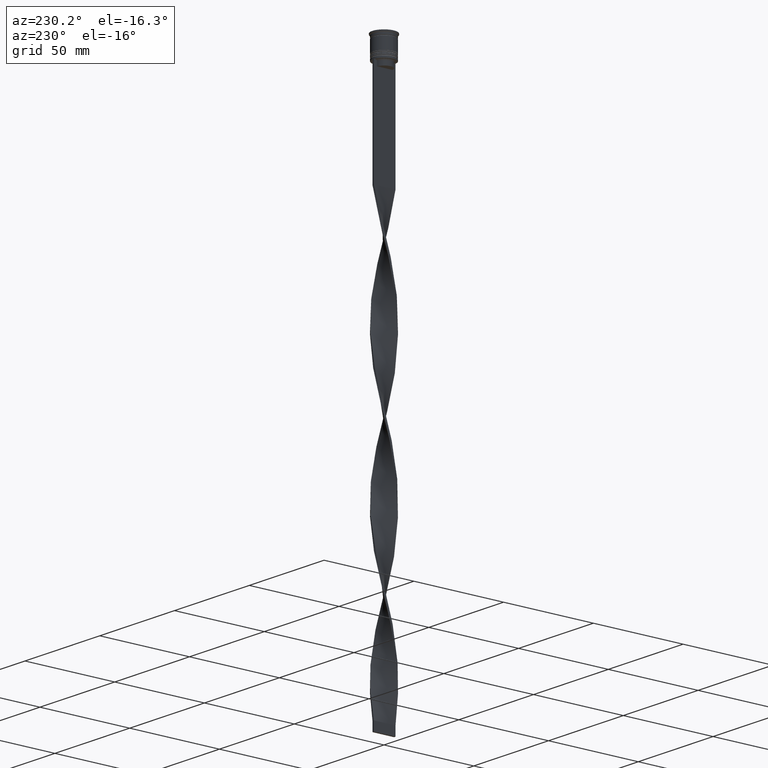
[diagram: clean part render]
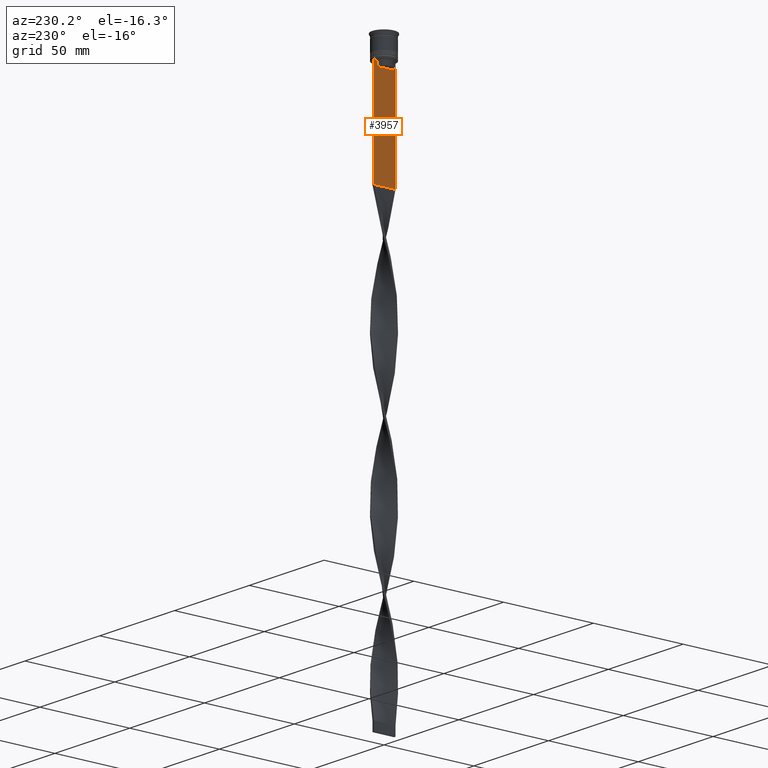
[diagram: same view with one face highlighted and labeled with its STEP entity id]
A machine part, auxiliary view. The second image highlights one B-rep face of the part: STEP entity #3957.
In plain terms, the highlighted planar face has unit normal (-1, 0, 0).
Its self-contained STEP definition (entity closure, byte-faithful):
#63 = DIRECTION ( 'NONE',  ( 0.000000000000000000, 0.000000000000000000, 1.000000000000000000 ) ) ;
#84 = VECTOR ( 'NONE', #731, 1000.000000000000000 ) ;
#140 = CARTESIAN_POINT ( 'NONE',  ( -0.4999999999999997780, -4.371498598878878816, -13.00000000000000178 ) ) ;
#207 = ORIENTED_EDGE ( 'NONE', *, *, #943, .F. ) ;
#350 = FACE_OUTER_BOUND ( 'NONE', #2481, .T. ) ;
#351 = VECTOR ( 'NONE', #3529, 1000.000000000000000 ) ;
#413 = LINE ( 'NONE', #2294, #2564 ) ;
#415 = DIRECTION ( 'NONE',  ( 0.000000000000000000, 0.000000000000000000, -1.000000000000000000 ) ) ;
#437 = CARTESIAN_POINT ( 'NONE',  ( -0.4999999999999997780, -6.000000000000000000, -12.50000000000000000 ) ) ;
#490 = VERTEX_POINT ( 'NONE', #3238 ) ;
#536 = VERTEX_POINT ( 'NONE', #969 ) ;
#554 = VECTOR ( 'NONE', #2550, 1000.000000000000000 ) ;
#613 = ORIENTED_EDGE ( 'NONE', *, *, #948, .F. ) ;
#731 = DIRECTION ( 'NONE',  ( 0.000000000000000000, 1.000000000000000000, 0.000000000000000000 ) ) ;
#733 = VERTEX_POINT ( 'NONE', #1876 ) ;
#751 = LINE ( 'NONE', #2651, #3662 ) ;
#763 = EDGE_CURVE ( 'NONE', #3014, #1298, #751, .T. ) ;
#776 = ORIENTED_EDGE ( 'NONE', *, *, #3330, .F. ) ;
#812 = CARTESIAN_POINT ( 'NONE',  ( -0.4999999999999997780, 4.371498598878878816, -13.00000000000000178 ) ) ;
#848 = LINE ( 'NONE', #2523, #1746 ) ;
#851 = ORIENTED_EDGE ( 'NONE', *, *, #1223, .F. ) ;
#861 = EDGE_CURVE ( 'NONE', #1298, #3415, #3293, .T. ) ;
#900 = B_SPLINE_CURVE_WITH_KNOTS ( 'NONE', 3,
 ( #1910, #3512, #2249, #1014 ),
 .UNSPECIFIED., .F., .F.,
 ( 4, 4 ),
 ( 0.008336552452178418518, 0.009045730124312837891 ),
 .UNSPECIFIED. ) ;
#935 = CARTESIAN_POINT ( 'NONE',  ( -0.4999999999999997780, -4.706831372970964544, -12.66671687695981596 ) ) ;
#943 = EDGE_CURVE ( 'NONE', #1533, #733, #1243, .T. ) ;
#948 = EDGE_CURVE ( 'NONE', #3994, #2982, #848, .T. ) ;
#969 = CARTESIAN_POINT ( 'NONE',  ( -0.4999999999999997780, 5.878775382679627626, -12.50000000000000000 ) ) ;
#1002 = LINE ( 'NONE', #1020, #3611 ) ;
#1014 = CARTESIAN_POINT ( 'NONE',  ( -0.4999999999999997780, 4.371498598878878816, -13.00000000000000178 ) ) ;
#1020 = CARTESIAN_POINT ( 'NONE',  ( -0.4999999999999997780, 4.371498598878878816, 0.000000000000000000 ) ) ;
#1072 = EDGE_CURVE ( 'NONE', #2747, #1533, #4065, .T. ) ;
#1091 = LINE ( 'NONE', #2326, #2684 ) ;
#1198 = EDGE_CURVE ( 'NONE', #733, #3014, #3820, .T. ) ;
#1223 = EDGE_CURVE ( 'NONE', #490, #2433, #900, .T. ) ;
#1227 = CARTESIAN_POINT ( 'NONE',  ( -0.4999999999999997780, -4.371498598878878816, -15.50000000000000000 ) ) ;
#1243 = LINE ( 'NONE', #2742, #2413 ) ;
#1298 = VERTEX_POINT ( 'NONE', #3240 ) ;
#1300 = ORIENTED_EDGE ( 'NONE', *, *, #1072, .F. ) ;
#1533 = VERTEX_POINT ( 'NONE', #2218 ) ;
#1665 = PLANE ( 'NONE',  #2219 ) ;
#1746 = VECTOR ( 'NONE', #3051, 1000.000000000000000 ) ;
#1754 = CARTESIAN_POINT ( 'NONE',  ( -0.4999999999999997780, -6.000000000000000000, -12.50000000000000000 ) ) ;
#1830 = ORIENTED_EDGE ( 'NONE', *, *, #763, .F. ) ;
#1876 = CARTESIAN_POINT ( 'NONE',  ( -0.4999999999999997780, -5.878775382679627626, -12.50000000000000000 ) ) ;
#1910 = CARTESIAN_POINT ( 'NONE',  ( -0.4999999999999997780, 4.874423042781576676, -12.50000000000000000 ) ) ;
#2034 = ORIENTED_EDGE ( 'NONE', *, *, #3839, .T. ) ;
#2110 = LINE ( 'NONE', #1754, #2228 ) ;
#2218 = CARTESIAN_POINT ( 'NONE',  ( -0.4999999999999997780, -4.874423042781576676, -12.50000000000000000 ) ) ;
#2219 = AXIS2_PLACEMENT_3D ( 'NONE', #3595, #2931, #63 ) ;
#2228 = VECTOR ( 'NONE', #3658, 1000.000000000000000 ) ;
#2249 = CARTESIAN_POINT ( 'NONE',  ( -0.4999999999999997780, 4.539195634199897356, -12.83338923751318816 ) ) ;
#2294 = CARTESIAN_POINT ( 'NONE',  ( -0.4999999999999997780, -6.000000000000000000, -12.50000000000000000 ) ) ;
#2326 = CARTESIAN_POINT ( 'NONE',  ( -0.4999999999999997780, -4.371498598878878816, 0.000000000000000000 ) ) ;
#2384 = CARTESIAN_POINT ( 'NONE',  ( -0.4999999999999997780, 6.000000000000000888, -68.50000000000000000 ) ) ;
#2413 = VECTOR ( 'NONE', #3758, 1000.000000000000000 ) ;
#2433 = VERTEX_POINT ( 'NONE', #812 ) ;
#2481 = EDGE_LOOP ( 'NONE', ( #851, #3253, #2666, #2034, #3744, #1830, #3947, #207, #1300, #776, #613, #4047 ) ) ;
#2523 = CARTESIAN_POINT ( 'NONE',  ( -0.4999999999999997780, 4.399999999999999467, -15.50000000000000000 ) ) ;
#2540 = CARTESIAN_POINT ( 'NONE',  ( -0.4999999999999997780, -6.000000000000000000, -12.50000000000000000 ) ) ;
#2550 = DIRECTION ( 'NONE',  ( 0.000000000000000000, 0.000000000000000000, -1.000000000000000000 ) ) ;
#2564 = VECTOR ( 'NONE', #2929, 1000.000000000000000 ) ;
#2651 = CARTESIAN_POINT ( 'NONE',  ( -0.4999999999999997780, -6.000000000000000000, -0.4584054212077061097 ) ) ;
#2666 = ORIENTED_EDGE ( 'NONE', *, *, #3685, .F. ) ;
#2684 = VECTOR ( 'NONE', #3585, 1000.000000000000000 ) ;
#2731 = CARTESIAN_POINT ( 'NONE',  ( -0.4999999999999997780, 6.000000000000001776, -12.50000000000000000 ) ) ;
#2742 = CARTESIAN_POINT ( 'NONE',  ( -0.4999999999999997780, -6.000000000000000000, -12.50000000000000000 ) ) ;
#2747 = VERTEX_POINT ( 'NONE', #140 ) ;
#2767 = CARTESIAN_POINT ( 'NONE',  ( -0.4999999999999997780, -4.874423042781576676, -12.50000000000000000 ) ) ;
#2913 = CARTESIAN_POINT ( 'NONE',  ( -0.4999999999999997780, 4.371498598878878816, -15.50000000000000000 ) ) ;
#2929 = DIRECTION ( 'NONE',  ( 0.000000000000000000, -1.000000000000000000, 0.000000000000000000 ) ) ;
#2931 = DIRECTION ( 'NONE',  ( -1.000000000000000000, 0.000000000000000000, 0.000000000000000000 ) ) ;
#2982 = VERTEX_POINT ( 'NONE', #1227 ) ;
#3014 = VERTEX_POINT ( 'NONE', #437 ) ;
#3025 = EDGE_CURVE ( 'NONE', #536, #490, #413, .T. ) ;
#3051 = DIRECTION ( 'NONE',  ( 0.000000000000000000, -1.000000000000000000, 0.000000000000000000 ) ) ;
#3204 = CARTESIAN_POINT ( 'NONE',  ( -0.4999999999999997780, 6.000000000000000888, -0.4584054212077061097 ) ) ;
#3238 = CARTESIAN_POINT ( 'NONE',  ( -0.4999999999999997780, 4.874423042781576676, -12.50000000000000000 ) ) ;
#3240 = CARTESIAN_POINT ( 'NONE',  ( -0.4999999999999997780, -6.000000000000000000, -68.50000000000000000 ) ) ;
#3253 = ORIENTED_EDGE ( 'NONE', *, *, #3025, .F. ) ;
#3293 = LINE ( 'NONE', #3868, #84 ) ;
#3330 = EDGE_CURVE ( 'NONE', #2982, #2747, #1091, .T. ) ;
#3415 = VERTEX_POINT ( 'NONE', #2384 ) ;
#3512 = CARTESIAN_POINT ( 'NONE',  ( -0.4999999999999997780, 4.706831415367290106, -12.66671683478478982 ) ) ;
#3521 = LINE ( 'NONE', #3204, #554 ) ;
#3529 = DIRECTION ( 'NONE',  ( 0.000000000000000000, -1.000000000000000000, 0.000000000000000000 ) ) ;
#3584 = VERTEX_POINT ( 'NONE', #2731 ) ;
#3585 = DIRECTION ( 'NONE',  ( -0.000000000000000000, -0.000000000000000000, 1.000000000000000000 ) ) ;
#3595 = CARTESIAN_POINT ( 'NONE',  ( -0.4999999999999997780, -6.000000000000000000, -0.4584054212077061097 ) ) ;
#3599 = DIRECTION ( 'NONE',  ( 0.000000000000000000, 0.000000000000000000, -1.000000000000000000 ) ) ;
#3611 = VECTOR ( 'NONE', #415, 1000.000000000000000 ) ;
#3658 = DIRECTION ( 'NONE',  ( 0.000000000000000000, -1.000000000000000000, 0.000000000000000000 ) ) ;
#3662 = VECTOR ( 'NONE', #3599, 1000.000000000000000 ) ;
#3685 = EDGE_CURVE ( 'NONE', #3584, #536, #2110, .T. ) ;
#3744 = ORIENTED_EDGE ( 'NONE', *, *, #861, .F. ) ;
#3758 = DIRECTION ( 'NONE',  ( 0.000000000000000000, -1.000000000000000000, 0.000000000000000000 ) ) ;
#3820 = LINE ( 'NONE', #2540, #351 ) ;
#3839 = EDGE_CURVE ( 'NONE', #3584, #3415, #3521, .T. ) ;
#3868 = CARTESIAN_POINT ( 'NONE',  ( -0.4999999999999997780, -6.000000000000000000, -68.50000000000000000 ) ) ;
#3947 = ORIENTED_EDGE ( 'NONE', *, *, #1198, .F. ) ;
#3957 = ADVANCED_FACE ( 'NONE', ( #350 ), #1665, .T. ) ;
#3981 = EDGE_CURVE ( 'NONE', #2433, #3994, #1002, .T. ) ;
#3994 = VERTEX_POINT ( 'NONE', #2913 ) ;
#4047 = ORIENTED_EDGE ( 'NONE', *, *, #3981, .F. ) ;
#4065 = B_SPLINE_CURVE_WITH_KNOTS ( 'NONE', 3,
 ( #4094, #4069, #935, #2767 ),
 .UNSPECIFIED., .F., .F.,
 ( 4, 4 ),
 ( 0.02089901220910806920, 0.02161421017310284978 ),
 .UNSPECIFIED. ) ;
#4069 = CARTESIAN_POINT ( 'NONE',  ( -0.4999999999999997780, -4.539195586926424220, -12.83338928448044136 ) ) ;
#4094 = CARTESIAN_POINT ( 'NONE',  ( -0.4999999999999997780, -4.371498598878878816, -13.00000000000000178 ) ) ;